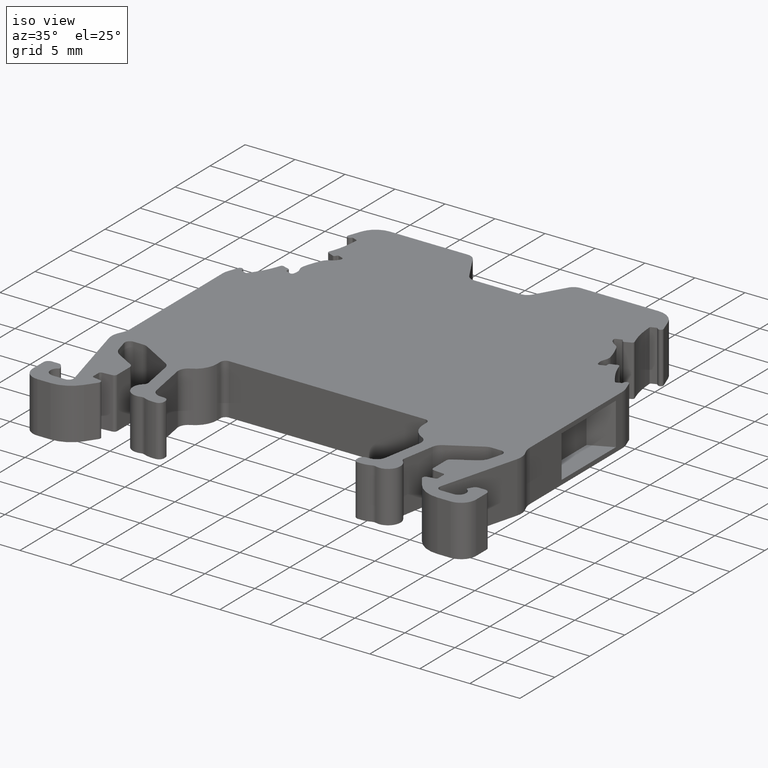
[diagram: clean part render]
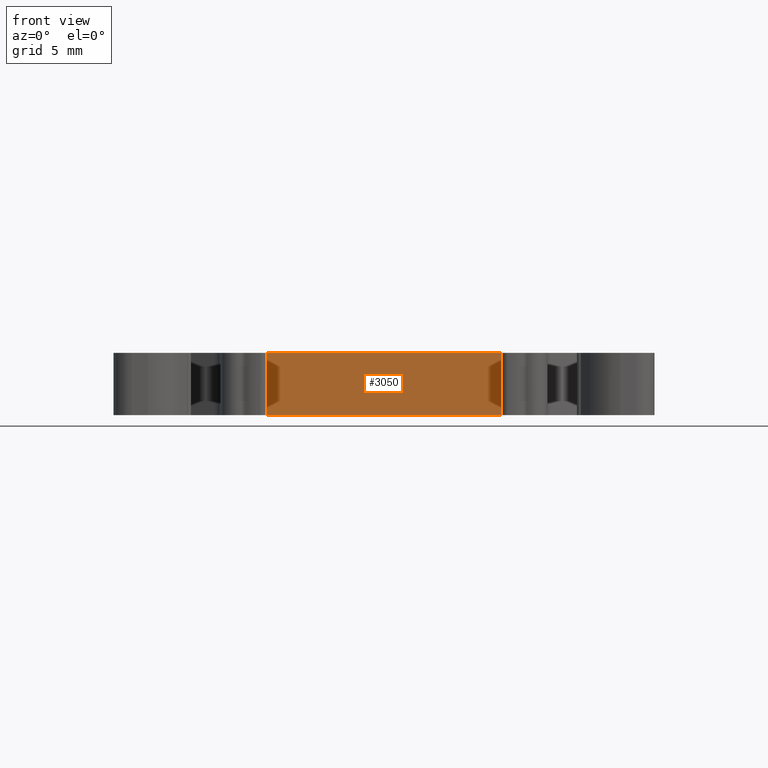
[diagram: tour spotlight — one face highlighted and labeled with its STEP entity id]
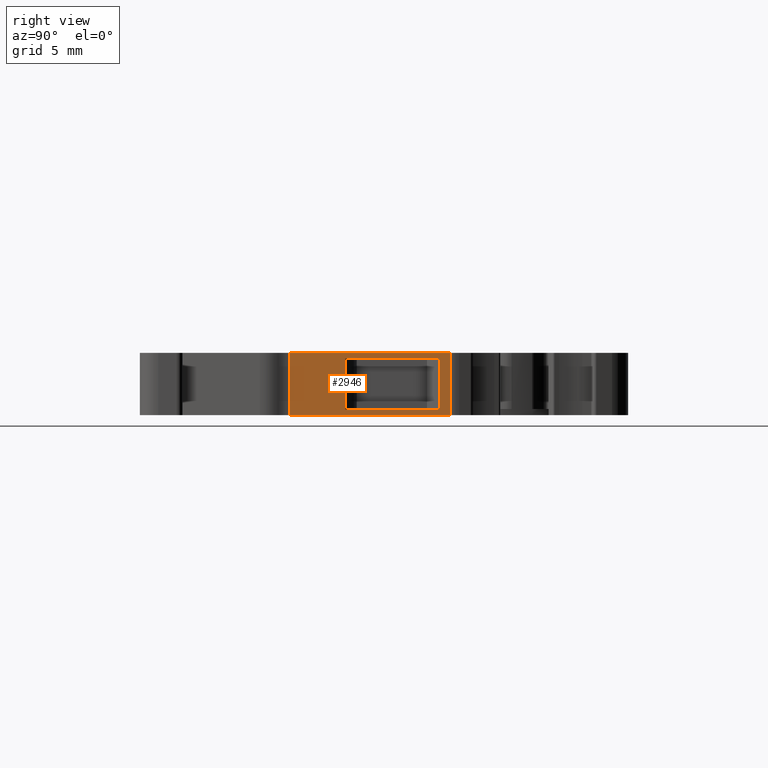
[diagram: tour spotlight — one face highlighted and labeled with its STEP entity id]
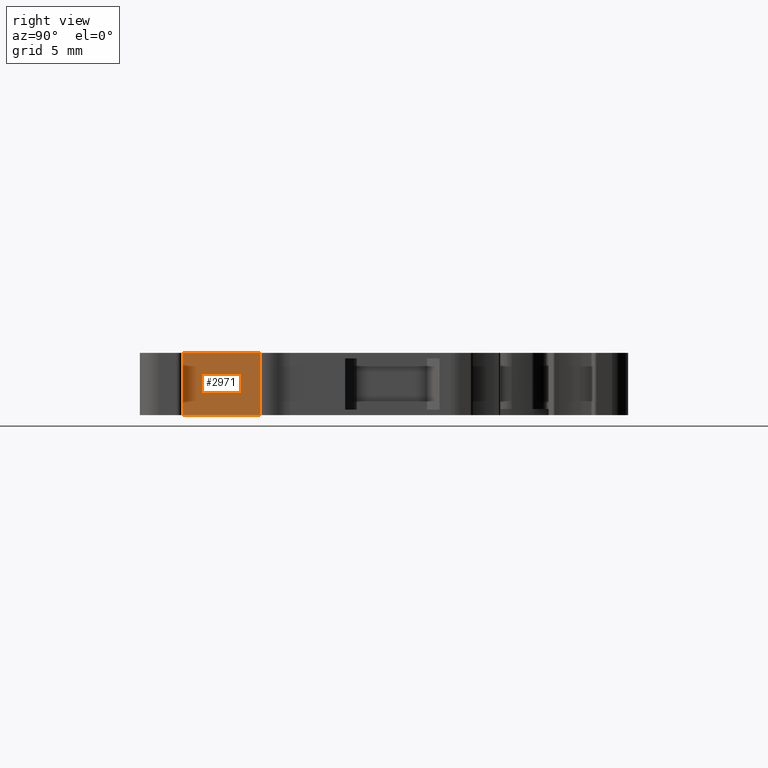
[diagram: tour spotlight — one face highlighted and labeled with its STEP entity id]
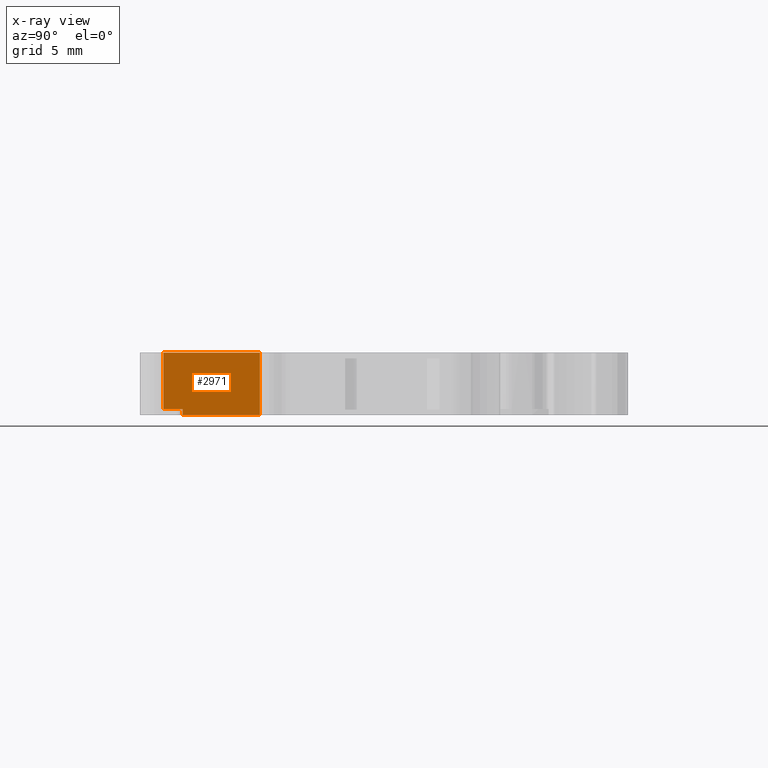
[diagram: x-ray of the same camera — body ghosted, this tour face saturated]
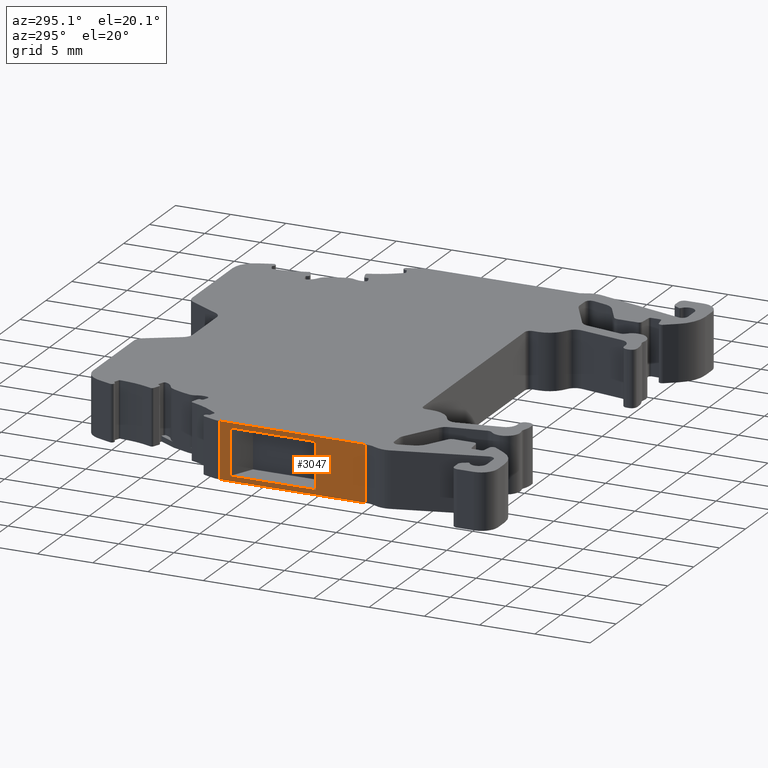
[diagram: tour spotlight — one face highlighted and labeled with its STEP entity id]
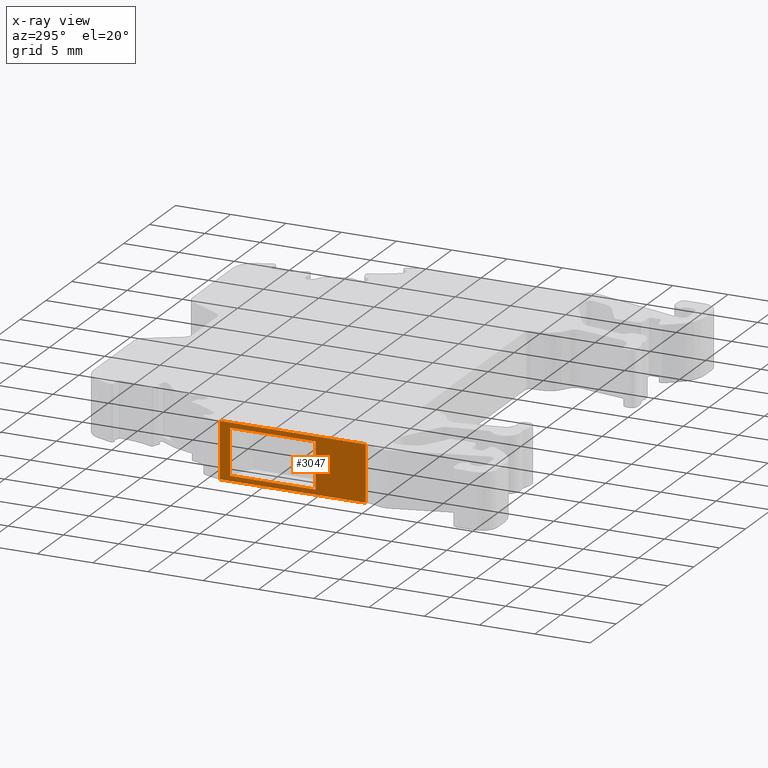
[diagram: x-ray of the same camera — body ghosted, this tour face saturated]
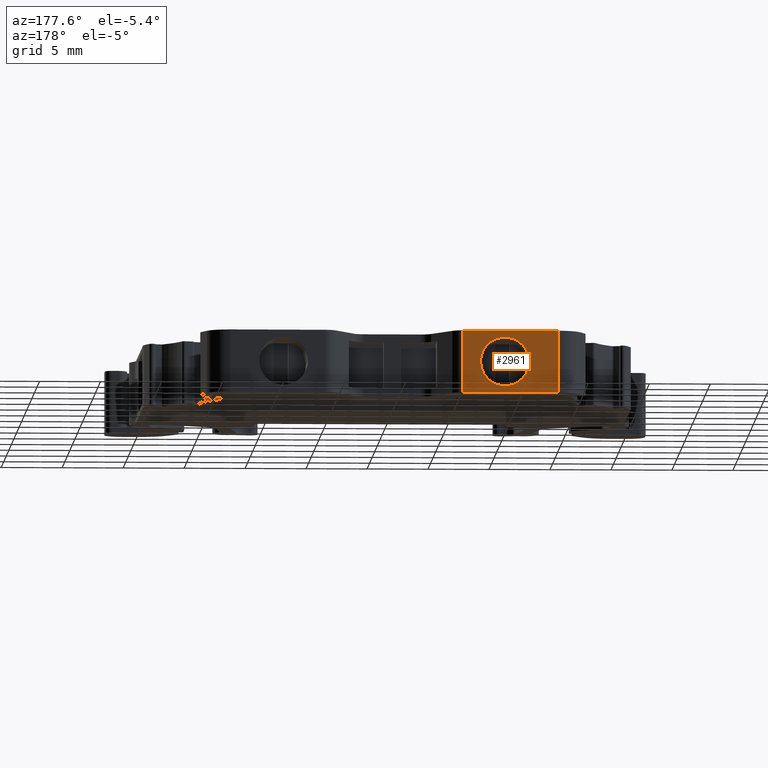
[diagram: tour spotlight — one face highlighted and labeled with its STEP entity id]
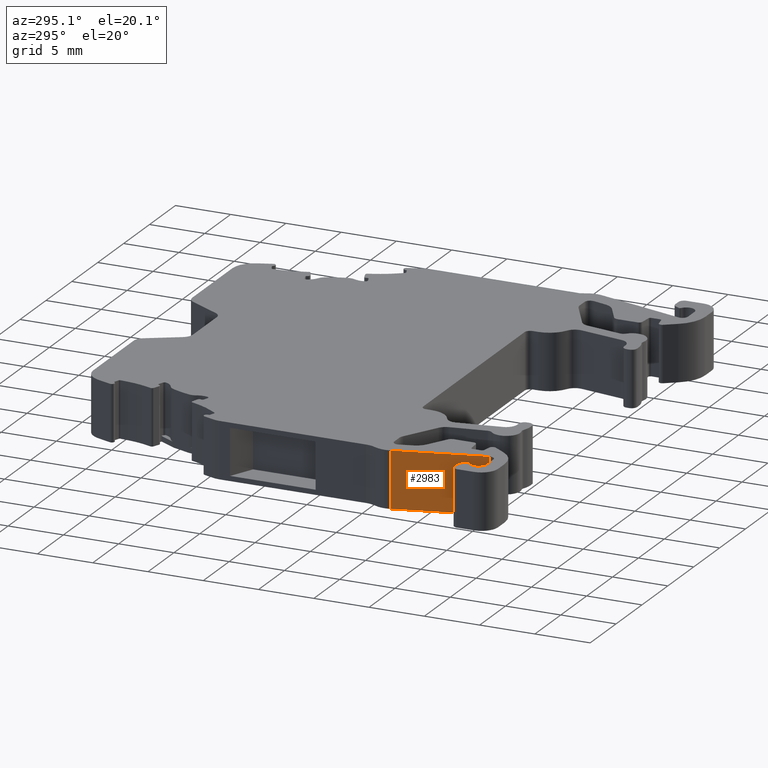
[diagram: tour spotlight — one face highlighted and labeled with its STEP entity id]
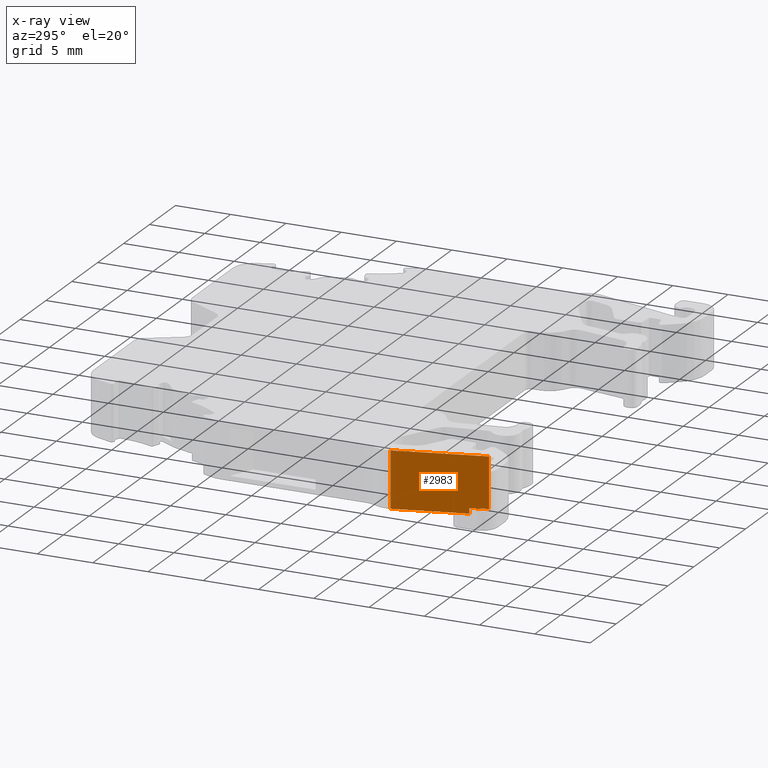
[diagram: x-ray of the same camera — body ghosted, this tour face saturated]
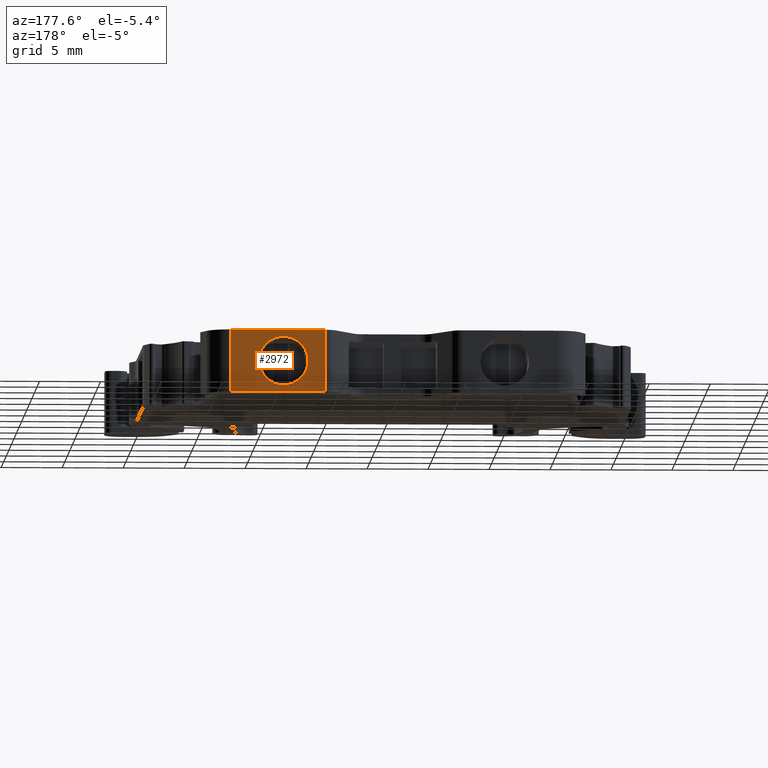
[diagram: tour spotlight — one face highlighted and labeled with its STEP entity id]
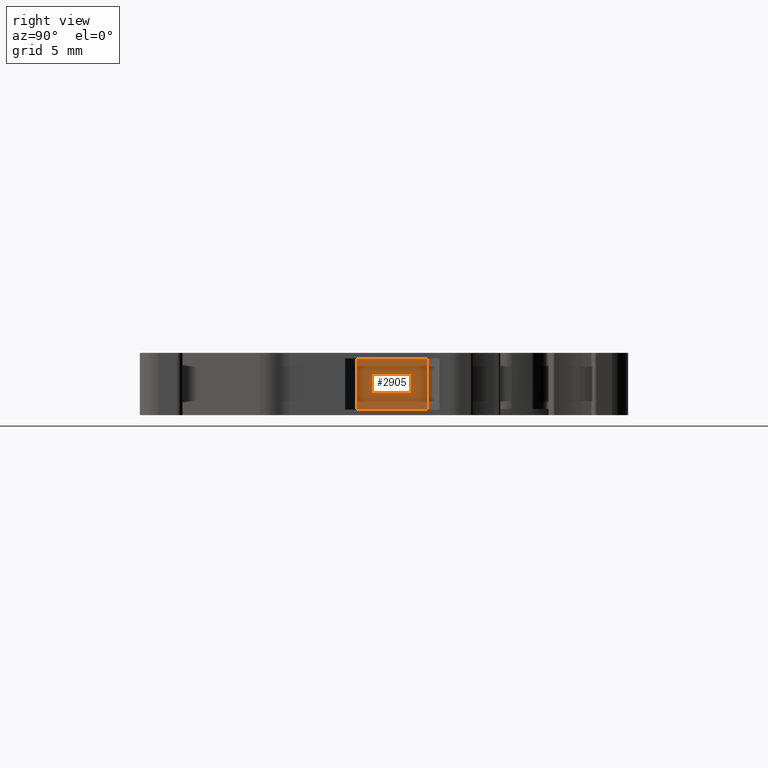
[diagram: tour spotlight — one face highlighted and labeled with its STEP entity id]
A machine part: a face-by-face anatomy tour. The part has 251 B-rep faces; the first image is the clean iso view, then the 8 largest visible faces are spotlighted one at a time (largest first), each with its STEP entity span.

Face 1 — front view, entity #3050. In plain terms, the highlighted planar face has unit normal (0, -1, 0).
Definition (entity closure, byte-faithful):
#143 = ORIENTED_EDGE ( 'NONE', *, *, #3608, .T. ) ;
#173 = ORIENTED_EDGE ( 'NONE', *, *, #3590, .T. ) ;
#174 = ORIENTED_EDGE ( 'NONE', *, *, #3111, .T. ) ;
#190 = ORIENTED_EDGE ( 'NONE', *, *, #3024, .T. ) ;
#733 = EDGE_LOOP ( 'NONE', ( #190, #173, #174, #143 ) ) ;
#1166 = VERTEX_POINT ( 'NONE', #5927 ) ;
#1177 = VERTEX_POINT ( 'NONE', #5961 ) ;
#1196 = VERTEX_POINT ( 'NONE', #5925 ) ;
#1207 = VERTEX_POINT ( 'NONE', #6021 ) ;
#3024 = EDGE_CURVE ( 'NONE', #1166, #1177, #7380, .T. ) ;
#3050 = ADVANCED_FACE ( 'NONE', ( #7674 ), #7640, .T. ) ;
#3111 = EDGE_CURVE ( 'NONE', #1196, #1207, #8042, .T. ) ;
#3590 = EDGE_CURVE ( 'NONE', #1177, #1196, #4147, .T. ) ;
#3608 = EDGE_CURVE ( 'NONE', #1207, #1166, #4175, .T. ) ;
#4139 = CARTESIAN_POINT ( 'NONE',  ( 1450.378077285344000, 929.3334142198590400, 9.037842237415203400 ) ) ;
#4147 = LINE ( 'NONE', #4139, #8973 ) ;
#4150 = DIRECTION ( 'NONE',  ( 0.0000000000000000000, -0.0000000000000000000, -1.000000000000000000 ) ) ;
#4175 = LINE ( 'NONE', #4212, #7128 ) ;
#4212 = CARTESIAN_POINT ( 'NONE',  ( 1469.978071433282100, 929.3334142198590400, 9.037842237415203400 ) ) ;
#4239 = DIRECTION ( 'NONE',  ( -0.0000000000000000000, 0.0000000000000000000, 1.000000000000000000 ) ) ;
#5925 = CARTESIAN_POINT ( 'NONE',  ( 1450.378077285344000, 929.3334142198590400, -48.05000000000000400 ) ) ;
#5927 = CARTESIAN_POINT ( 'NONE',  ( 1469.978071433282100, 929.3334142198590400, -42.94999999999999600 ) ) ;
#5961 = CARTESIAN_POINT ( 'NONE',  ( 1450.378077285344000, 929.3334142198590400, -42.94999999999999600 ) ) ;
#6021 = CARTESIAN_POINT ( 'NONE',  ( 1469.978071433282100, 929.3334142198590400, -48.05000000000000400 ) ) ;
#7128 = VECTOR ( 'NONE', #4239, 1000.000000000000000 ) ;
#7380 = LINE ( 'NONE', #7458, #8195 ) ;
#7445 = DIRECTION ( 'NONE',  ( -1.000000000000000000, -0.0000000000000000000, -0.0000000000000000000 ) ) ;
#7458 = CARTESIAN_POINT ( 'NONE',  ( 1469.978071433282100, 929.3334142198590400, -42.94999999999999600 ) ) ;
#7640 = PLANE ( 'NONE',  #8151 ) ;
#7644 = DIRECTION ( 'NONE',  ( 0.0000000000000000000, -0.0000000000000000000, -1.000000000000000000 ) ) ;
#7647 = CARTESIAN_POINT ( 'NONE',  ( 1469.978071433282100, 929.3334142198590400, 9.037842237415203400 ) ) ;
#7650 = DIRECTION ( 'NONE',  ( 0.0000000000000000000, -1.000000000000000000, 0.0000000000000000000 ) ) ;
#7674 = FACE_OUTER_BOUND ( 'NONE', #733, .T. ) ;
#7973 = DIRECTION ( 'NONE',  ( 1.000000000000000000, 0.0000000000000000000, 0.0000000000000000000 ) ) ;
#8001 = CARTESIAN_POINT ( 'NONE',  ( 1469.978071433282100, 929.3334142198590400, -48.05000000000000400 ) ) ;
#8042 = LINE ( 'NONE', #8001, #8422 ) ;
#8151 = AXIS2_PLACEMENT_3D ( 'NONE', #7647, #7650, #7644 ) ;
#8195 = VECTOR ( 'NONE', #7445, 1000.000000000000000 ) ;
#8422 = VECTOR ( 'NONE', #7973, 1000.000000000000000 ) ;
#8973 = VECTOR ( 'NONE', #4150, 1000.000000000000000 ) ;

Face 2 — right view, entity #2946. In plain terms, the highlighted planar face has unit normal (1, 0, -0).
Definition (entity closure, byte-faithful):
#195 = ORIENTED_EDGE ( 'NONE', *, *, #3729, .T. ) ;
#211 = ORIENTED_EDGE ( 'NONE', *, *, #3692, .T. ) ;
#221 = ORIENTED_EDGE ( 'NONE', *, *, #3641, .T. ) ;
#225 = ORIENTED_EDGE ( 'NONE', *, *, #3073, .T. ) ;
#241 = ORIENTED_EDGE ( 'NONE', *, *, #3063, .T. ) ;
#275 = ORIENTED_EDGE ( 'NONE', *, *, #3676, .T. ) ;
#286 = ORIENTED_EDGE ( 'NONE', *, *, #3757, .T. ) ;
#297 = ORIENTED_EDGE ( 'NONE', *, *, #3639, .T. ) ;
#708 = EDGE_LOOP ( 'NONE', ( #286, #275, #221, #297 ) ) ;
#764 = EDGE_LOOP ( 'NONE', ( #225, #195, #241, #211 ) ) ;
#1204 = VERTEX_POINT ( 'NONE', #6036 ) ;
#1221 = VERTEX_POINT ( 'NONE', #5998 ) ;
#1225 = VERTEX_POINT ( 'NONE', #6001 ) ;
#1228 = VERTEX_POINT ( 'NONE', #6034 ) ;
#1235 = VERTEX_POINT ( 'NONE', #6002 ) ;
#1255 = VERTEX_POINT ( 'NONE', #5996 ) ;
#1264 = VERTEX_POINT ( 'NONE', #6015 ) ;
#1270 = VERTEX_POINT ( 'NONE', #6067 ) ;
#2946 = ADVANCED_FACE ( 'NONE', ( #8782, #8835 ), #8757, .T. ) ;
#3063 = EDGE_CURVE ( 'NONE', #1264, #1221, #7639, .T. ) ;
#3073 = EDGE_CURVE ( 'NONE', #1270, #1225, #7723, .T. ) ;
#3639 = EDGE_CURVE ( 'NONE', #1235, #1255, #4315, .T. ) ;
#3641 = EDGE_CURVE ( 'NONE', #1228, #1235, #4304, .T. ) ;
#3676 = EDGE_CURVE ( 'NONE', #1204, #1228, #4415, .T. ) ;
#3692 = EDGE_CURVE ( 'NONE', #1221, #1270, #4466, .T. ) ;
#3729 = EDGE_CURVE ( 'NONE', #1225, #1264, #4558, .T. ) ;
#3757 = EDGE_CURVE ( 'NONE', #1255, #1204, #4628, .T. ) ;
#4302 = CARTESIAN_POINT ( 'NONE',  ( 1480.178079134952200, 903.5272105145279500, -43.39999999992846100 ) ) ;
#4304 = LINE ( 'NONE', #4326, #7223 ) ;
#4315 = LINE ( 'NONE', #4302, #7253 ) ;
#4326 = CARTESIAN_POINT ( 'NONE',  ( 1480.178076608022100, 934.2887671773886500, -48.79999999999999700 ) ) ;
#4327 = DIRECTION ( 'NONE',  ( 0.0000000000000000000, 0.0000000000000000000, 1.000000000000000000 ) ) ;
#4331 = DIRECTION ( 'NONE',  ( -8.214571098364565700E-008, 0.9999999999999965600, 0.0000000000000000000 ) ) ;
#4415 = LINE ( 'NONE', #4417, #7210 ) ;
#4417 = CARTESIAN_POINT ( 'NONE',  ( 1480.178079134952200, 903.5272105145279500, -47.59999999988409800 ) ) ;
#4419 = DIRECTION ( 'NONE',  ( 8.214571098364565700E-008, -0.9999999999999965600, -0.0000000000000000000 ) ) ;
#4457 = CARTESIAN_POINT ( 'NONE',  ( 1480.178076980804000, 929.7507111823317700, -48.79999999999999700 ) ) ;
#4466 = LINE ( 'NONE', #4457, #7365 ) ;
#4490 = DIRECTION ( 'NONE',  ( -0.0000000000000000000, -0.0000000000000000000, -1.000000000000000000 ) ) ;
#4544 = DIRECTION ( 'NONE',  ( 0.0000000000000000000, 0.0000000000000000000, 1.000000000000000000 ) ) ;
#4558 = LINE ( 'NONE', #4559, #7476 ) ;
#4559 = CARTESIAN_POINT ( 'NONE',  ( 1480.178075896574000, 942.9495760049987900, -48.79999999999999700 ) ) ;
#4628 = LINE ( 'NONE', #4631, #7466 ) ;
#4631 = CARTESIAN_POINT ( 'NONE',  ( 1480.178075972728000, 942.0225127184387500, -48.79999999999999700 ) ) ;
#4639 = DIRECTION ( 'NONE',  ( -0.0000000000000000000, -0.0000000000000000000, -1.000000000000000000 ) ) ;
#5996 = CARTESIAN_POINT ( 'NONE',  ( 1480.178076330047400, 942.0225128295556900, -43.39999999986982000 ) ) ;
#5998 = CARTESIAN_POINT ( 'NONE',  ( 1480.178076980804000, 929.7507111823315400, -42.94999999999999600 ) ) ;
#6001 = CARTESIAN_POINT ( 'NONE',  ( 1480.178075896574000, 942.9495760049987900, -48.05000000000000400 ) ) ;
#6002 = CARTESIAN_POINT ( 'NONE',  ( 1480.178076608017600, 934.2887671403452700, -43.39999999988020100 ) ) ;
#6015 = CARTESIAN_POINT ( 'NONE',  ( 1480.178075896574000, 942.9495760049987900, -42.94999999999999600 ) ) ;
#6034 = CARTESIAN_POINT ( 'NONE',  ( 1480.178075972560200, 934.2887673996192500, -47.60000000007155300 ) ) ;
#6036 = CARTESIAN_POINT ( 'NONE',  ( 1480.178076015928100, 942.0225126923205600, -47.59999999994557400 ) ) ;
#6067 = CARTESIAN_POINT ( 'NONE',  ( 1480.178076980804000, 929.7507111823315400, -48.05000000000000400 ) ) ;
#7210 = VECTOR ( 'NONE', #4419, 1000.000000000000100 ) ;
#7223 = VECTOR ( 'NONE', #4327, 1000.000000000000000 ) ;
#7253 = VECTOR ( 'NONE', #4331, 1000.000000000000100 ) ;
#7365 = VECTOR ( 'NONE', #4490, 1000.000000000000000 ) ;
#7466 = VECTOR ( 'NONE', #4639, 1000.000000000000000 ) ;
#7476 = VECTOR ( 'NONE', #4544, 1000.000000000000000 ) ;
#7639 = LINE ( 'NONE', #7752, #8261 ) ;
#7723 = LINE ( 'NONE', #7759, #8315 ) ;
#7734 = DIRECTION ( 'NONE',  ( 8.214571098364565700E-008, -0.9999999999999965600, -0.0000000000000000000 ) ) ;
#7751 = DIRECTION ( 'NONE',  ( -8.214571098364565700E-008, 0.9999999999999965600, 0.0000000000000000000 ) ) ;
#7752 = CARTESIAN_POINT ( 'NONE',  ( 1480.178079134952200, 903.5272105145279500, -42.94999999999999600 ) ) ;
#7759 = CARTESIAN_POINT ( 'NONE',  ( 1480.178079134952200, 903.5272105145279500, -48.05000000000000400 ) ) ;
#8088 = AXIS2_PLACEMENT_3D ( 'NONE', #8786, #8837, #8772 ) ;
#8261 = VECTOR ( 'NONE', #7734, 1000.000000000000100 ) ;
#8315 = VECTOR ( 'NONE', #7751, 1000.000000000000100 ) ;
#8757 = PLANE ( 'NONE',  #8088 ) ;
#8772 = DIRECTION ( 'NONE',  ( -8.214571098364565700E-008, 0.9999999999999965600, 0.0000000000000000000 ) ) ;
#8782 = FACE_OUTER_BOUND ( 'NONE', #764, .T. ) ;
#8786 = CARTESIAN_POINT ( 'NONE',  ( 1480.178079134952200, 903.5272105145279500, -48.79999999999999700 ) ) ;
#8835 = FACE_BOUND ( 'NONE', #708, .T. ) ;
#8837 = DIRECTION ( 'NONE',  ( 0.9999999999999966700, 8.214571098364567000E-008, -0.0000000000000000000 ) ) ;

Face 3 — right view, entity #2971. An x-ray twin of the same camera follows (body ghosted, this face saturated) — the face is partly hidden behind the body. In plain terms, the highlighted planar face has unit normal (0.9659, -0.2588, 0).
Definition (entity closure, byte-faithful):
#203 = ORIENTED_EDGE ( 'NONE', *, *, #3171, .T. ) ;
#218 = ORIENTED_EDGE ( 'NONE', *, *, #3633, .F. ) ;
#223 = ORIENTED_EDGE ( 'NONE', *, *, #3097, .T. ) ;
#249 = ORIENTED_EDGE ( 'NONE', *, *, #3658, .T. ) ;
#255 = ORIENTED_EDGE ( 'NONE', *, *, #3685, .T. ) ;
#290 = ORIENTED_EDGE ( 'NONE', *, *, #3035, .T. ) ;
#706 = EDGE_LOOP ( 'NONE', ( #203, #255, #290, #249, #218, #223 ) ) ;
#1161 = VERTEX_POINT ( 'NONE', #5958 ) ;
#1175 = VERTEX_POINT ( 'NONE', #5964 ) ;
#1197 = VERTEX_POINT ( 'NONE', #5940 ) ;
#1209 = VERTEX_POINT ( 'NONE', #5983 ) ;
#1263 = VERTEX_POINT ( 'NONE', #6012 ) ;
#1296 = VERTEX_POINT ( 'NONE', #6070 ) ;
#2971 = ADVANCED_FACE ( 'NONE', ( #7013 ), #6957, .T. ) ;
#3035 = EDGE_CURVE ( 'NONE', #1263, #1175, #7517, .T. ) ;
#3097 = EDGE_CURVE ( 'NONE', #1197, #1296, #7865, .T. ) ;
#3171 = EDGE_CURVE ( 'NONE', #1296, #1161, #8381, .T. ) ;
#3633 = EDGE_CURVE ( 'NONE', #1197, #1209, #4254, .T. ) ;
#3658 = EDGE_CURVE ( 'NONE', #1175, #1209, #4347, .T. ) ;
#3685 = EDGE_CURVE ( 'NONE', #1161, #1263, #4444, .T. ) ;
#4254 = LINE ( 'NONE', #4267, #7087 ) ;
#4267 = CARTESIAN_POINT ( 'NONE',  ( 1478.906352344990200, 920.9726424160073700, -47.54999999999999000 ) ) ;
#4270 = DIRECTION ( 'NONE',  ( -0.2588006264942242000, -0.9659307613520737900, 0.0000000000000000000 ) ) ;
#4347 = LINE ( 'NONE', #4362, #7196 ) ;
#4362 = CARTESIAN_POINT ( 'NONE',  ( 1478.485539229305900, 919.4020266925216400, 9.037842237415203400 ) ) ;
#4363 = DIRECTION ( 'NONE',  ( 0.0000000000000000000, -0.0000000000000000000, -1.000000000000000000 ) ) ;
#4432 = CARTESIAN_POINT ( 'NONE',  ( 1480.603740483389900, 927.3078643938079000, 9.037842237415203400 ) ) ;
#4440 = DIRECTION ( 'NONE',  ( -0.0000000000000000000, 0.0000000000000000000, 1.000000000000000000 ) ) ;
#4444 = LINE ( 'NONE', #4432, #7336 ) ;
#5940 = CARTESIAN_POINT ( 'NONE',  ( 1478.906352344990000, 920.9726424160073700, -47.55000000000000400 ) ) ;
#5958 = CARTESIAN_POINT ( 'NONE',  ( 1480.603740498712600, 927.3078644509964800, -48.05000000000000400 ) ) ;
#5964 = CARTESIAN_POINT ( 'NONE',  ( 1478.485539229305900, 919.4020266925217600, -42.94999999999999600 ) ) ;
#5983 = CARTESIAN_POINT ( 'NONE',  ( 1478.485539229305900, 919.4020266925217600, -47.54999999999999000 ) ) ;
#6012 = CARTESIAN_POINT ( 'NONE',  ( 1480.603740498712600, 927.3078644509964800, -42.94999999999999600 ) ) ;
#6070 = CARTESIAN_POINT ( 'NONE',  ( 1478.906352344990000, 920.9726424160073700, -48.05000000000002600 ) ) ;
#6957 = PLANE ( 'NONE',  #8020 ) ;
#6997 = DIRECTION ( 'NONE',  ( 0.9659307613520786700, -0.2588006264942064300, 0.0000000000000000000 ) ) ;
#7013 = FACE_OUTER_BOUND ( 'NONE', #706, .T. ) ;
#7024 = DIRECTION ( 'NONE',  ( 0.2588006264942063800, 0.9659307613520785600, 0.0000000000000000000 ) ) ;
#7038 = CARTESIAN_POINT ( 'NONE',  ( 1478.485539229305900, 919.4020266925219900, 9.037842237415203400 ) ) ;
#7087 = VECTOR ( 'NONE', #4270, 1000.000000000000200 ) ;
#7196 = VECTOR ( 'NONE', #4363, 1000.000000000000000 ) ;
#7336 = VECTOR ( 'NONE', #4440, 1000.000000000000000 ) ;
#7489 = DIRECTION ( 'NONE',  ( -0.2588006264942063800, -0.9659307613520785600, -0.0000000000000000000 ) ) ;
#7517 = LINE ( 'NONE', #7523, #8193 ) ;
#7523 = CARTESIAN_POINT ( 'NONE',  ( 1478.485539229305900, 919.4020266925219900, -42.94999999999999600 ) ) ;
#7865 = LINE ( 'NONE', #7885, #8307 ) ;
#7885 = CARTESIAN_POINT ( 'NONE',  ( 1478.906352344990000, 920.9726424160073700, 9.037842237415203400 ) ) ;
#7957 = DIRECTION ( 'NONE',  ( 0.0000000000000000000, -0.0000000000000000000, -1.000000000000000000 ) ) ;
#8020 = AXIS2_PLACEMENT_3D ( 'NONE', #7038, #6997, #7024 ) ;
#8193 = VECTOR ( 'NONE', #7489, 1000.000000000000100 ) ;
#8307 = VECTOR ( 'NONE', #7957, 1000.000000000000000 ) ;
#8381 = LINE ( 'NONE', #8393, #8462 ) ;
#8393 = CARTESIAN_POINT ( 'NONE',  ( 1478.485539229305900, 919.4020266925219900, -48.05000000000000400 ) ) ;
#8397 = DIRECTION ( 'NONE',  ( 0.2588006264942063800, 0.9659307613520785600, 0.0000000000000000000 ) ) ;
#8462 = VECTOR ( 'NONE', #8397, 1000.000000000000100 ) ;

Face 4 — auxiliary view, entity #3047. An x-ray twin of the same camera follows (body ghosted, this face saturated) — the face is partly hidden behind the body. In plain terms, the highlighted planar face has unit normal (-1, 0, 0).
Definition (entity closure, byte-faithful):
#335 = ORIENTED_EDGE ( 'NONE', *, *, #3790, .T. ) ;
#337 = ORIENTED_EDGE ( 'NONE', *, *, #3091, .T. ) ;
#358 = ORIENTED_EDGE ( 'NONE', *, *, #3762, .T. ) ;
#365 = ORIENTED_EDGE ( 'NONE', *, *, #3776, .T. ) ;
#389 = ORIENTED_EDGE ( 'NONE', *, *, #3785, .T. ) ;
#394 = ORIENTED_EDGE ( 'NONE', *, *, #3771, .T. ) ;
#396 = ORIENTED_EDGE ( 'NONE', *, *, #3788, .T. ) ;
#412 = ORIENTED_EDGE ( 'NONE', *, *, #3070, .T. ) ;
#808 = EDGE_LOOP ( 'NONE', ( #358, #396, #394, #389 ) ) ;
#811 = EDGE_LOOP ( 'NONE', ( #337, #365, #412, #335 ) ) ;
#1218 = VERTEX_POINT ( 'NONE', #6000 ) ;
#1233 = VERTEX_POINT ( 'NONE', #6035 ) ;
#1237 = VERTEX_POINT ( 'NONE', #6029 ) ;
#1246 = VERTEX_POINT ( 'NONE', #5979 ) ;
#1254 = VERTEX_POINT ( 'NONE', #5995 ) ;
#1256 = VERTEX_POINT ( 'NONE', #6004 ) ;
#1257 = VERTEX_POINT ( 'NONE', #6005 ) ;
#1262 = VERTEX_POINT ( 'NONE', #6011 ) ;
#1393 = CARTESIAN_POINT ( 'NONE',  ( 1440.178072110603800, 934.2887673996448300, -48.79999999999999700 ) ) ;
#1394 = DIRECTION ( 'NONE',  ( -0.0000000000000000000, -0.0000000000000000000, -1.000000000000000000 ) ) ;
#1411 = LINE ( 'NONE', #1393, #7449 ) ;
#1412 = LINE ( 'NONE', #1414, #7413 ) ;
#1414 = CARTESIAN_POINT ( 'NONE',  ( 1440.178072745897900, 942.0225127925330100, -48.79999999999999700 ) ) ;
#1419 = DIRECTION ( 'NONE',  ( 0.0000000000000000000, 0.0000000000000000000, 1.000000000000000000 ) ) ;
#1424 = LINE ( 'NONE', #1428, #7536 ) ;
#1428 = CARTESIAN_POINT ( 'NONE',  ( 1440.178071737822200, 929.7507111823317700, -48.79999999999999700 ) ) ;
#1442 = DIRECTION ( 'NONE',  ( 8.214571098364565700E-008, 0.9999999999999965600, -0.0000000000000000000 ) ) ;
#1452 = LINE ( 'NONE', #1473, #7528 ) ;
#1459 = LINE ( 'NONE', #1511, #7557 ) ;
#1473 = CARTESIAN_POINT ( 'NONE',  ( 1440.178069583674000, 903.5272105145279500, -47.59999999999446600 ) ) ;
#1474 = LINE ( 'NONE', #1478, #7603 ) ;
#1478 = CARTESIAN_POINT ( 'NONE',  ( 1440.178069583674000, 903.5272105145279500, -43.39999999989262100 ) ) ;
#1481 = DIRECTION ( 'NONE',  ( 0.0000000000000000000, 0.0000000000000000000, 1.000000000000000000 ) ) ;
#1482 = DIRECTION ( 'NONE',  ( -8.214571098364565700E-008, -0.9999999999999965600, 0.0000000000000000000 ) ) ;
#1502 = DIRECTION ( 'NONE',  ( -0.0000000000000000000, -0.0000000000000000000, -1.000000000000000000 ) ) ;
#1511 = CARTESIAN_POINT ( 'NONE',  ( 1440.178072822052200, 942.9495760049987900, -48.79999999999999700 ) ) ;
#3047 = ADVANCED_FACE ( 'NONE', ( #7601, #7604 ), #7558, .T. ) ;
#3070 = EDGE_CURVE ( 'NONE', #1254, #1257, #7745, .T. ) ;
#3091 = EDGE_CURVE ( 'NONE', #1218, #1237, #7912, .T. ) ;
#3762 = EDGE_CURVE ( 'NONE', #1262, #1246, #1411, .T. ) ;
#3771 = EDGE_CURVE ( 'NONE', #1256, #1233, #1412, .T. ) ;
#3776 = EDGE_CURVE ( 'NONE', #1237, #1254, #1424, .T. ) ;
#3785 = EDGE_CURVE ( 'NONE', #1233, #1262, #1474, .T. ) ;
#3788 = EDGE_CURVE ( 'NONE', #1246, #1256, #1452, .T. ) ;
#3790 = EDGE_CURVE ( 'NONE', #1257, #1218, #1459, .T. ) ;
#5979 = CARTESIAN_POINT ( 'NONE',  ( 1440.178072110601100, 934.2887672144299800, -47.60000000003300600 ) ) ;
#5995 = CARTESIAN_POINT ( 'NONE',  ( 1440.178071737822200, 929.7507111823315400, -42.94999999999999600 ) ) ;
#6000 = CARTESIAN_POINT ( 'NONE',  ( 1440.178072822052200, 942.9495760049987900, -48.05000000000000400 ) ) ;
#6004 = CARTESIAN_POINT ( 'NONE',  ( 1440.178072414093100, 942.0225127991558300, -47.60000000000705000 ) ) ;
#6005 = CARTESIAN_POINT ( 'NONE',  ( 1440.178072822052200, 942.9495760049987900, -42.94999999999999600 ) ) ;
#6011 = CARTESIAN_POINT ( 'NONE',  ( 1440.178072363092000, 934.2887673692106300, -43.39999999977491300 ) ) ;
#6029 = CARTESIAN_POINT ( 'NONE',  ( 1440.178071737822200, 929.7507111823315400, -48.05000000000000400 ) ) ;
#6035 = CARTESIAN_POINT ( 'NONE',  ( 1440.178072587139000, 942.0225127554891700, -43.39999999975384500 ) ) ;
#7413 = VECTOR ( 'NONE', #1419, 1000.000000000000000 ) ;
#7449 = VECTOR ( 'NONE', #1394, 1000.000000000000000 ) ;
#7528 = VECTOR ( 'NONE', #1442, 1000.000000000000100 ) ;
#7536 = VECTOR ( 'NONE', #1481, 1000.000000000000000 ) ;
#7557 = VECTOR ( 'NONE', #1502, 1000.000000000000000 ) ;
#7558 = PLANE ( 'NONE',  #8146 ) ;
#7560 = DIRECTION ( 'NONE',  ( -8.214571098364565700E-008, -0.9999999999999965600, 0.0000000000000000000 ) ) ;
#7601 = FACE_OUTER_BOUND ( 'NONE', #811, .T. ) ;
#7603 = VECTOR ( 'NONE', #1482, 1000.000000000000100 ) ;
#7604 = FACE_BOUND ( 'NONE', #808, .T. ) ;
#7626 = CARTESIAN_POINT ( 'NONE',  ( 1440.178069583674000, 903.5272105145279500, -48.79999999999999700 ) ) ;
#7627 = DIRECTION ( 'NONE',  ( -0.9999999999999966700, 8.214571098364567000E-008, 0.0000000000000000000 ) ) ;
#7699 = DIRECTION ( 'NONE',  ( 8.214571098364565700E-008, 0.9999999999999965600, -0.0000000000000000000 ) ) ;
#7738 = CARTESIAN_POINT ( 'NONE',  ( 1440.178069583674000, 903.5272105145279500, -42.94999999999999600 ) ) ;
#7745 = LINE ( 'NONE', #7738, #8258 ) ;
#7908 = CARTESIAN_POINT ( 'NONE',  ( 1440.178069583674000, 903.5272105145279500, -48.05000000000000400 ) ) ;
#7912 = LINE ( 'NONE', #7908, #8239 ) ;
#7914 = DIRECTION ( 'NONE',  ( -8.214571098364565700E-008, -0.9999999999999965600, 0.0000000000000000000 ) ) ;
#8146 = AXIS2_PLACEMENT_3D ( 'NONE', #7626, #7627, #7560 ) ;
#8239 = VECTOR ( 'NONE', #7914, 1000.000000000000100 ) ;
#8258 = VECTOR ( 'NONE', #7699, 1000.000000000000100 ) ;

Face 5 — auxiliary view, entity #2961. In plain terms, the highlighted planar face has unit normal (0, 1, 0).
Definition (entity closure, byte-faithful):
#264 = ORIENTED_EDGE ( 'NONE', *, *, #3183, .F. ) ;
#269 = ORIENTED_EDGE ( 'NONE', *, *, #3736, .T. ) ;
#287 = ORIENTED_EDGE ( 'NONE', *, *, #3779, .T. ) ;
#304 = ORIENTED_EDGE ( 'NONE', *, *, #3079, .T. ) ;
#320 = ORIENTED_EDGE ( 'NONE', *, *, #3162, .T. ) ;
#370 = ORIENTED_EDGE ( 'NONE', *, *, #3174, .T. ) ;
#783 = EDGE_LOOP ( 'NONE', ( #287, #320, #264, #304 ) ) ;
#802 = VERTEX_POINT ( 'NONE', #1328 ) ;
#828 = EDGE_LOOP ( 'NONE', ( #370, #269 ) ) ;
#829 = VERTEX_POINT ( 'NONE', #6841 ) ;
#1227 = VERTEX_POINT ( 'NONE', #6028 ) ;
#1231 = VERTEX_POINT ( 'NONE', #6032 ) ;
#1287 = VERTEX_POINT ( 'NONE', #6069 ) ;
#1317 = VERTEX_POINT ( 'NONE', #6066 ) ;
#1328 = CARTESIAN_POINT ( 'NONE',  ( 1453.103379388908000, 957.4726160637230800, -45.50000000000000000 ) ) ;
#1470 = CARTESIAN_POINT ( 'NONE',  ( 1454.529959235191400, 957.4726160051290000, -90.99999999999870700 ) ) ;
#1475 = LINE ( 'NONE', #1470, #7522 ) ;
#1479 = DIRECTION ( 'NONE',  ( 5.543145069594264200E-023, 1.349587106452241500E-015, -1.000000000000000000 ) ) ;
#2961 = ADVANCED_FACE ( 'NONE', ( #6955, #6943 ), #6978, .T. ) ;
#3079 = EDGE_CURVE ( 'NONE', #1287, #1227, #7840, .T. ) ;
#3162 = EDGE_CURVE ( 'NONE', #1231, #1317, #8395, .T. ) ;
#3174 = EDGE_CURVE ( 'NONE', #829, #802, #8551, .T. ) ;
#3183 = EDGE_CURVE ( 'NONE', #1287, #1317, #8468, .T. ) ;
#3736 = EDGE_CURVE ( 'NONE', #802, #829, #7429, .T. ) ;
#3779 = EDGE_CURVE ( 'NONE', #1227, #1231, #1475, .T. ) ;
#4608 = CARTESIAN_POINT ( 'NONE',  ( 1451.103379388908000, 957.4726161458688700, -45.50000000000000000 ) ) ;
#4610 = DIRECTION ( 'NONE',  ( -4.107289587380492900E-008, -0.9999999999999992200, -1.349587106452242900E-015 ) ) ;
#4617 = DIRECTION ( 'NONE',  ( -0.9999999999999991100, 4.107292284061251800E-008, 0.0000000000000000000 ) ) ;
#6028 = CARTESIAN_POINT ( 'NONE',  ( 1454.529959245870300, 957.4726160051288800, -42.94999999999994600 ) ) ;
#6032 = CARTESIAN_POINT ( 'NONE',  ( 1454.529959245870300, 957.4726160051288800, -48.05000000000000400 ) ) ;
#6066 = CARTESIAN_POINT ( 'NONE',  ( 1446.736094292766000, 957.4726163252454400, -48.05000000000000400 ) ) ;
#6069 = CARTESIAN_POINT ( 'NONE',  ( 1446.736094292766000, 957.4726163252454400, -42.94999999999999600 ) ) ;
#6841 = CARTESIAN_POINT ( 'NONE',  ( 1449.103379388908000, 957.4726162280147700, -45.50000000000000000 ) ) ;
#6943 = FACE_BOUND ( 'NONE', #828, .T. ) ;
#6953 = CARTESIAN_POINT ( 'NONE',  ( 3.932617551305179400E-005, 957.4726757468849900, -90.99999999999870700 ) ) ;
#6955 = FACE_OUTER_BOUND ( 'NONE', #783, .T. ) ;
#6978 = PLANE ( 'NONE',  #8005 ) ;
#6979 = DIRECTION ( 'NONE',  ( -0.9999999999999992200, 4.107289587380492200E-008, 0.0000000000000000000 ) ) ;
#6994 = DIRECTION ( 'NONE',  ( 4.107289587380492200E-008, 0.9999999999999992200, 1.349587106452242900E-015 ) ) ;
#7429 = CIRCLE ( 'NONE', #7478, 2.000000000000003600 ) ;
#7478 = AXIS2_PLACEMENT_3D ( 'NONE', #4608, #4610, #4617 ) ;
#7522 = VECTOR ( 'NONE', #1479, 1000.000000000000000 ) ;
#7767 = DIRECTION ( 'NONE',  ( 0.9999999999999992200, -4.107289587380492200E-008, -0.0000000000000000000 ) ) ;
#7818 = CARTESIAN_POINT ( 'NONE',  ( 3.932617551305179400E-005, 957.4726757468848700, -42.94999999999993900 ) ) ;
#7840 = LINE ( 'NONE', #7818, #8284 ) ;
#8005 = AXIS2_PLACEMENT_3D ( 'NONE', #6953, #6994, #6979 ) ;
#8284 = VECTOR ( 'NONE', #7767, 1000.000000000000000 ) ;
#8395 = LINE ( 'NONE', #8415, #8458 ) ;
#8415 = CARTESIAN_POINT ( 'NONE',  ( 3.932617551305179400E-005, 957.4726757468848700, -48.04999999999998300 ) ) ;
#8417 = DIRECTION ( 'NONE',  ( -0.9999999999999992200, 4.107289587380492200E-008, 0.0000000000000000000 ) ) ;
#8448 = AXIS2_PLACEMENT_3D ( 'NONE', #8475, #8521, #8453 ) ;
#8453 = DIRECTION ( 'NONE',  ( -0.9999999999999991100, 4.107292284061251800E-008, 0.0000000000000000000 ) ) ;
#8458 = VECTOR ( 'NONE', #8417, 1000.000000000000000 ) ;
#8468 = LINE ( 'NONE', #8511, #8523 ) ;
#8475 = CARTESIAN_POINT ( 'NONE',  ( 1451.103379388908000, 957.4726161458688700, -45.50000000000000000 ) ) ;
#8511 = CARTESIAN_POINT ( 'NONE',  ( 1446.736094313302600, 957.4726163252452100, -48.79999999999999700 ) ) ;
#8517 = DIRECTION ( 'NONE',  ( -0.0000000000000000000, -0.0000000000000000000, -1.000000000000000000 ) ) ;
#8521 = DIRECTION ( 'NONE',  ( -4.107289587380492900E-008, -0.9999999999999992200, -1.349587106452242900E-015 ) ) ;
#8523 = VECTOR ( 'NONE', #8517, 1000.000000000000000 ) ;
#8551 = CIRCLE ( 'NONE', #8448, 2.000000000000003600 ) ;

Face 6 — auxiliary view, entity #2983. An x-ray twin of the same camera follows (body ghosted, this face saturated) — the face is partly hidden behind the body. In plain terms, the highlighted planar face has unit normal (-0.9659, -0.2588, 0).
Definition (entity closure, byte-faithful):
#338 = ORIENTED_EDGE ( 'NONE', *, *, #3177, .T. ) ;
#363 = ORIENTED_EDGE ( 'NONE', *, *, #3172, .F. ) ;
#366 = ORIENTED_EDGE ( 'NONE', *, *, #3178, .T. ) ;
#368 = ORIENTED_EDGE ( 'NONE', *, *, #3784, .T. ) ;
#397 = ORIENTED_EDGE ( 'NONE', *, *, #3106, .T. ) ;
#431 = ORIENTED_EDGE ( 'NONE', *, *, #3122, .T. ) ;
#774 = VERTEX_POINT ( 'NONE', #1318 ) ;
#793 = EDGE_LOOP ( 'NONE', ( #431, #363, #368, #366, #397, #338 ) ) ;
#796 = VERTEX_POINT ( 'NONE', #1320 ) ;
#804 = VERTEX_POINT ( 'NONE', #1275 ) ;
#822 = VERTEX_POINT ( 'NONE', #6855 ) ;
#1275 = CARTESIAN_POINT ( 'NONE',  ( 1441.870609489319800, 919.4020266925217600, -42.94999999999999600 ) ) ;
#1299 = VERTEX_POINT ( 'NONE', #6088 ) ;
#1318 = CARTESIAN_POINT ( 'NONE',  ( 1439.752408219913400, 927.3078644509964800, -48.05000000000000400 ) ) ;
#1320 = CARTESIAN_POINT ( 'NONE',  ( 1439.752408219913400, 927.3078644509964800, -42.94999999999999600 ) ) ;
#1321 = VERTEX_POINT ( 'NONE', #6056 ) ;
#1447 = CARTESIAN_POINT ( 'NONE',  ( 1441.870609489319800, 919.4020266925219900, -47.54999999999999000 ) ) ;
#1458 = LINE ( 'NONE', #1447, #7571 ) ;
#1477 = DIRECTION ( 'NONE',  ( 0.2588006264942063800, -0.9659307613520785600, 0.0000000000000000000 ) ) ;
#2983 = ADVANCED_FACE ( 'NONE', ( #7150 ), #7111, .T. ) ;
#3106 = EDGE_CURVE ( 'NONE', #804, #796, #8053, .T. ) ;
#3122 = EDGE_CURVE ( 'NONE', #774, #1321, #8083, .T. ) ;
#3172 = EDGE_CURVE ( 'NONE', #1299, #1321, #8504, .T. ) ;
#3177 = EDGE_CURVE ( 'NONE', #796, #774, #8509, .T. ) ;
#3178 = EDGE_CURVE ( 'NONE', #822, #804, #8497, .T. ) ;
#3784 = EDGE_CURVE ( 'NONE', #1299, #822, #1458, .T. ) ;
#6056 = CARTESIAN_POINT ( 'NONE',  ( 1441.449796373635800, 920.9726424160074900, -48.05000000000002600 ) ) ;
#6088 = CARTESIAN_POINT ( 'NONE',  ( 1441.449796373635800, 920.9726424160074900, -47.55000000000004000 ) ) ;
#6855 = CARTESIAN_POINT ( 'NONE',  ( 1441.870609489319800, 919.4020266925217600, -47.54999999999999000 ) ) ;
#7075 = DIRECTION ( 'NONE',  ( -0.9659307613520786700, -0.2588006264942064300, 0.0000000000000000000 ) ) ;
#7111 = PLANE ( 'NONE',  #8079 ) ;
#7115 = CARTESIAN_POINT ( 'NONE',  ( 1441.870609489319800, 919.4020266925219900, 9.037842237415203400 ) ) ;
#7137 = DIRECTION ( 'NONE',  ( 0.2588006264942063800, -0.9659307613520785600, 0.0000000000000000000 ) ) ;
#7150 = FACE_OUTER_BOUND ( 'NONE', #793, .T. ) ;
#7571 = VECTOR ( 'NONE', #1477, 1000.000000000000100 ) ;
#7981 = DIRECTION ( 'NONE',  ( -0.2588006264942063800, 0.9659307613520785600, -0.0000000000000000000 ) ) ;
#8043 = CARTESIAN_POINT ( 'NONE',  ( 1441.870609489319800, 919.4020266925219900, -42.94999999999999600 ) ) ;
#8053 = LINE ( 'NONE', #8043, #8380 ) ;
#8079 = AXIS2_PLACEMENT_3D ( 'NONE', #7115, #7075, #7137 ) ;
#8083 = LINE ( 'NONE', #8116, #8436 ) ;
#8087 = DIRECTION ( 'NONE',  ( 0.2588006264942063800, -0.9659307613520785600, 0.0000000000000000000 ) ) ;
#8116 = CARTESIAN_POINT ( 'NONE',  ( 1441.870609489319800, 919.4020266925219900, -48.05000000000000400 ) ) ;
#8380 = VECTOR ( 'NONE', #7981, 1000.000000000000100 ) ;
#8436 = VECTOR ( 'NONE', #8087, 1000.000000000000100 ) ;
#8443 = DIRECTION ( 'NONE',  ( -0.0000000000000000000, -0.0000000000000000000, -1.000000000000000000 ) ) ;
#8445 = DIRECTION ( 'NONE',  ( -0.0000000000000000000, -0.0000000000000000000, -1.000000000000000000 ) ) ;
#8457 = CARTESIAN_POINT ( 'NONE',  ( 1441.870609489319800, 919.4020266925216400, 9.037842237415203400 ) ) ;
#8469 = VECTOR ( 'NONE', #8443, 1000.000000000000000 ) ;
#8495 = DIRECTION ( 'NONE',  ( 0.0000000000000000000, 0.0000000000000000000, 1.000000000000000000 ) ) ;
#8497 = LINE ( 'NONE', #8457, #8534 ) ;
#8504 = LINE ( 'NONE', #8526, #8469 ) ;
#8509 = LINE ( 'NONE', #8527, #8553 ) ;
#8526 = CARTESIAN_POINT ( 'NONE',  ( 1441.449796373635800, 920.9726424160074900, 9.037842237415203400 ) ) ;
#8527 = CARTESIAN_POINT ( 'NONE',  ( 1439.752408235236100, 927.3078643938077900, 9.037842237415203400 ) ) ;
#8534 = VECTOR ( 'NONE', #8495, 1000.000000000000000 ) ;
#8553 = VECTOR ( 'NONE', #8445, 1000.000000000000000 ) ;

Face 7 — auxiliary view, entity #2972. In plain terms, the highlighted planar face has unit normal (0, 1, 0).
Definition (entity closure, byte-faithful):
#271 = ORIENTED_EDGE ( 'NONE', *, *, #3098, .T. ) ;
#280 = ORIENTED_EDGE ( 'NONE', *, *, #3180, .T. ) ;
#332 = ORIENTED_EDGE ( 'NONE', *, *, #3002, .T. ) ;
#336 = ORIENTED_EDGE ( 'NONE', *, *, #3109, .T. ) ;
#356 = ORIENTED_EDGE ( 'NONE', *, *, #3702, .T. ) ;
#367 = ORIENTED_EDGE ( 'NONE', *, *, #3731, .T. ) ;
#710 = EDGE_LOOP ( 'NONE', ( #280, #367 ) ) ;
#736 = EDGE_LOOP ( 'NONE', ( #271, #336, #356, #332 ) ) ;
#776 = VERTEX_POINT ( 'NONE', #1330 ) ;
#799 = VERTEX_POINT ( 'NONE', #1323 ) ;
#1281 = VERTEX_POINT ( 'NONE', #6055 ) ;
#1313 = VERTEX_POINT ( 'NONE', #6085 ) ;
#1316 = VERTEX_POINT ( 'NONE', #6065 ) ;
#1323 = CARTESIAN_POINT ( 'NONE',  ( 1471.252769328205900, 957.4726153182748500, -45.50000000000000000 ) ) ;
#1329 = VERTEX_POINT ( 'NONE', #6084 ) ;
#1330 = CARTESIAN_POINT ( 'NONE',  ( 1467.252769328205900, 957.4726154825664300, -45.50000000000000000 ) ) ;
#2972 = ADVANCED_FACE ( 'NONE', ( #6996, #7049 ), #7014, .T. ) ;
#3002 = EDGE_CURVE ( 'NONE', #1329, #1316, #7254, .T. ) ;
#3098 = EDGE_CURVE ( 'NONE', #1316, #1313, #7871, .T. ) ;
#3109 = EDGE_CURVE ( 'NONE', #1313, #1281, #7879, .T. ) ;
#3180 = EDGE_CURVE ( 'NONE', #776, #799, #8464, .T. ) ;
#3702 = EDGE_CURVE ( 'NONE', #1281, #1329, #4454, .T. ) ;
#3731 = EDGE_CURVE ( 'NONE', #799, #776, #7452, .T. ) ;
#4454 = LINE ( 'NONE', #4478, #7344 ) ;
#4478 = CARTESIAN_POINT ( 'NONE',  ( 1465.826189564759700, 957.4726155411602800, -90.99999999999741400 ) ) ;
#4526 = DIRECTION ( 'NONE',  ( -1.108627492207839800E-022, -2.699170536449920400E-015, 1.000000000000000000 ) ) ;
#4587 = DIRECTION ( 'NONE',  ( -0.9999999999999991100, 4.107292284061251800E-008, 0.0000000000000000000 ) ) ;
#4614 = DIRECTION ( 'NONE',  ( -4.107289587380492900E-008, -0.9999999999999992200, -1.349587106452242900E-015 ) ) ;
#4618 = CARTESIAN_POINT ( 'NONE',  ( 1469.252769328205900, 957.4726154004206400, -45.50000000000000000 ) ) ;
#6055 = CARTESIAN_POINT ( 'NONE',  ( 1465.826189554491300, 957.4726155411601700, -48.04999999999999700 ) ) ;
#6065 = CARTESIAN_POINT ( 'NONE',  ( 1473.620054589330500, 957.4726157731443000, -42.94999999999999600 ) ) ;
#6084 = CARTESIAN_POINT ( 'NONE',  ( 1465.826189554491300, 957.4726155411601700, -42.94999999999996000 ) ) ;
#6085 = CARTESIAN_POINT ( 'NONE',  ( 1473.620054589330500, 957.4726157731443000, -48.05000000000000400 ) ) ;
#6996 = FACE_OUTER_BOUND ( 'NONE', #736, .T. ) ;
#7009 = CARTESIAN_POINT ( 'NONE',  ( 3.932617509847706100E-005, 957.4726757468844200, -90.99999999999741400 ) ) ;
#7014 = PLANE ( 'NONE',  #8002 ) ;
#7049 = FACE_BOUND ( 'NONE', #710, .T. ) ;
#7051 = DIRECTION ( 'NONE',  ( 4.107289544090679700E-008, 0.9999999999999992200, 2.699170536449923500E-015 ) ) ;
#7053 = DIRECTION ( 'NONE',  ( -0.9999999999999992200, 4.107289544090679700E-008, 0.0000000000000000000 ) ) ;
#7177 = CARTESIAN_POINT ( 'NONE',  ( 3.932617509847705500E-005, 957.4726757468843100, -42.94999999999991800 ) ) ;
#7254 = LINE ( 'NONE', #7177, #7733 ) ;
#7284 = DIRECTION ( 'NONE',  ( 0.9999999999999992200, -4.107289544090679700E-008, -0.0000000000000000000 ) ) ;
#7344 = VECTOR ( 'NONE', #4526, 1000.000000000000000 ) ;
#7417 = AXIS2_PLACEMENT_3D ( 'NONE', #4618, #4614, #4587 ) ;
#7452 = CIRCLE ( 'NONE', #7417, 2.000000000000003600 ) ;
#7733 = VECTOR ( 'NONE', #7284, 1000.000000000000000 ) ;
#7871 = LINE ( 'NONE', #7952, #8420 ) ;
#7879 = LINE ( 'NONE', #7996, #8414 ) ;
#7925 = DIRECTION ( 'NONE',  ( 1.108627492207839800E-022, 2.699170536449920400E-015, -1.000000000000000000 ) ) ;
#7952 = CARTESIAN_POINT ( 'NONE',  ( 1473.620054567973100, 957.4726152210436100, -90.99999999999741400 ) ) ;
#7975 = DIRECTION ( 'NONE',  ( -0.9999999999999992200, 4.107289544090679700E-008, 0.0000000000000000000 ) ) ;
#7996 = CARTESIAN_POINT ( 'NONE',  ( 3.932617509847705500E-005, 957.4726757468843100, -48.04999999999998300 ) ) ;
#8002 = AXIS2_PLACEMENT_3D ( 'NONE', #7009, #7051, #7053 ) ;
#8414 = VECTOR ( 'NONE', #7975, 1000.000000000000000 ) ;
#8420 = VECTOR ( 'NONE', #7925, 1000.000000000000000 ) ;
#8464 = CIRCLE ( 'NONE', #8520, 2.000000000000003600 ) ;
#8488 = CARTESIAN_POINT ( 'NONE',  ( 1469.252769328205900, 957.4726154004206400, -45.50000000000000000 ) ) ;
#8515 = DIRECTION ( 'NONE',  ( -0.9999999999999991100, 4.107292284061251800E-008, 0.0000000000000000000 ) ) ;
#8520 = AXIS2_PLACEMENT_3D ( 'NONE', #8488, #8537, #8515 ) ;
#8537 = DIRECTION ( 'NONE',  ( -4.107289587380492900E-008, -0.9999999999999992200, -1.349587106452242900E-015 ) ) ;

Face 8 — right view, entity #2905. In plain terms, the highlighted planar face has unit normal (1, -0, 0).
Definition (entity closure, byte-faithful):
#627 = EDGE_LOOP ( 'NONE', ( #5106, #5154, #5148, #5136 ) ) ;
#1041 = VERTEX_POINT ( 'NONE', #5811 ) ;
#1049 = VERTEX_POINT ( 'NONE', #5815 ) ;
#1059 = VERTEX_POINT ( 'NONE', #5823 ) ;
#1117 = VERTEX_POINT ( 'NONE', #5888 ) ;
#2725 = DIRECTION ( 'NONE',  ( 0.0000000000000000000, -1.000000000000000000, 8.339686960877850600E-012 ) ) ;
#2733 = CARTESIAN_POINT ( 'NONE',  ( 1477.966615531489900, 935.2383513340429300, -22.23802498709803600 ) ) ;
#2738 = DIRECTION ( 'NONE',  ( 0.0000000000000000000, 0.0000000000000000000, -1.000000000000000000 ) ) ;
#2756 = LINE ( 'NONE', #2759, #8873 ) ;
#2759 = CARTESIAN_POINT ( 'NONE',  ( 1477.966615531499900, 933.7478076158520300, -43.39999999992394900 ) ) ;
#2761 = LINE ( 'NONE', #2733, #8704 ) ;
#2905 = ADVANCED_FACE ( 'NONE', ( #6710 ), #6711, .T. ) ;
#3452 = EDGE_CURVE ( 'NONE', #1049, #1059, #2761, .T. ) ;
#3463 = EDGE_CURVE ( 'NONE', #1117, #1049, #2756, .T. ) ;
#3466 = EDGE_CURVE ( 'NONE', #1041, #1117, #4694, .T. ) ;
#3501 = EDGE_CURVE ( 'NONE', #1059, #1041, #3893, .T. ) ;
#3859 = DIRECTION ( 'NONE',  ( 0.0000000000000000000, 1.000000000000000000, 8.339686960877850600E-012 ) ) ;
#3880 = CARTESIAN_POINT ( 'NONE',  ( 1477.966615531499900, 933.7478076158520300, -47.60000000007605800 ) ) ;
#3893 = LINE ( 'NONE', #3880, #8843 ) ;
#4689 = CARTESIAN_POINT ( 'NONE',  ( 1477.966615531482100, 940.9912914838231500, -500040.7999169001100 ) ) ;
#4694 = LINE ( 'NONE', #4689, #8884 ) ;
#4706 = DIRECTION ( 'NONE',  ( 0.0000000000000000000, 0.0000000000000000000, 1.000000000000000000 ) ) ;
#5106 = ORIENTED_EDGE ( 'NONE', *, *, #3463, .T. ) ;
#5136 = ORIENTED_EDGE ( 'NONE', *, *, #3466, .T. ) ;
#5148 = ORIENTED_EDGE ( 'NONE', *, *, #3501, .T. ) ;
#5154 = ORIENTED_EDGE ( 'NONE', *, *, #3452, .T. ) ;
#5811 = CARTESIAN_POINT ( 'NONE',  ( 1477.966615531494000, 940.9912914838155300, -47.59999999981714300 ) ) ;
#5815 = CARTESIAN_POINT ( 'NONE',  ( 1477.966615531497400, 935.2383513340417900, -43.40000000439975000 ) ) ;
#5823 = CARTESIAN_POINT ( 'NONE',  ( 1477.966615531497400, 935.2383513340417900, -47.59999999998128600 ) ) ;
#5888 = CARTESIAN_POINT ( 'NONE',  ( 1477.966615531489200, 940.9912914838182600, -43.39999999970472500 ) ) ;
#6674 = DIRECTION ( 'NONE',  ( 1.000000000000000000, -0.0000000000000000000, 0.0000000000000000000 ) ) ;
#6676 = DIRECTION ( 'NONE',  ( 0.0000000000000000000, 0.0000000000000000000, -1.000000000000000000 ) ) ;
#6710 = FACE_OUTER_BOUND ( 'NONE', #627, .T. ) ;
#6711 = PLANE ( 'NONE',  #7931 ) ;
#6724 = CARTESIAN_POINT ( 'NONE',  ( 1477.966615531489900, 940.9912914838009800, -22.23802498709803600 ) ) ;
#7931 = AXIS2_PLACEMENT_3D ( 'NONE', #6724, #6674, #6676 ) ;
#8704 = VECTOR ( 'NONE', #2738, 1000.000000000000000 ) ;
#8843 = VECTOR ( 'NONE', #3859, 1000.000000000000000 ) ;
#8873 = VECTOR ( 'NONE', #2725, 1000.000000000000000 ) ;
#8884 = VECTOR ( 'NONE', #4706, 1000.000000000000000 ) ;